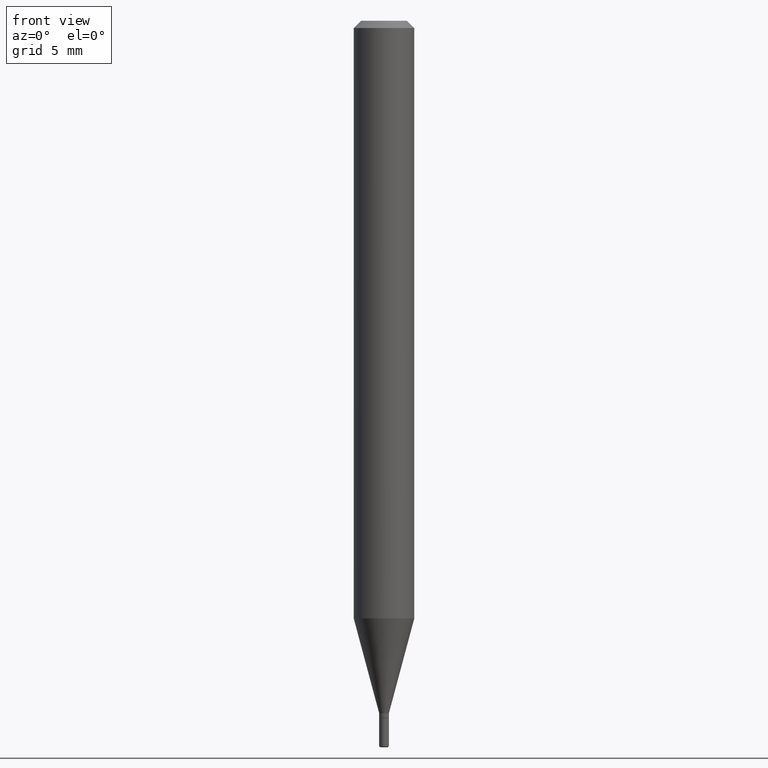
[diagram: clean part render]
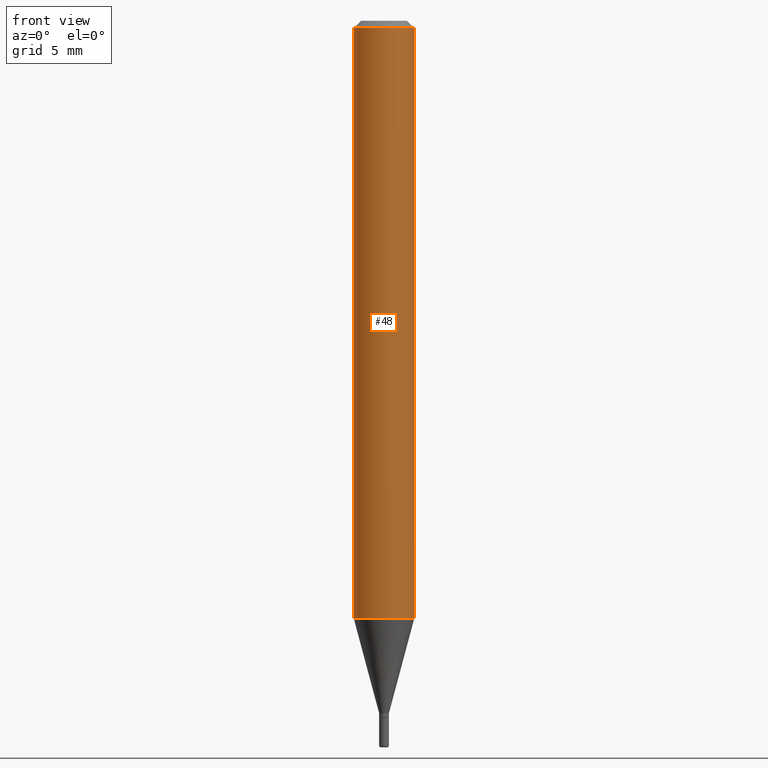
[diagram: same view with one face highlighted and labeled with its STEP entity id]
A machine part, front view. The second image highlights one B-rep face of the part: STEP entity #48.
In plain terms, the highlighted cylindrical surface (edge-blend (fillet) strip) has radius 1.5875 mm, axis along (-0, 0, 1).
Its self-contained STEP definition (entity closure, byte-faithful):
#15 = AXIS2_PLACEMENT_3D ( 'NONE', #360, #512, #239 ) ;
#28 = DIRECTION ( 'NONE',  ( 1.000000000000000000, -6.982962677686266711E-15, 4.876176775795935793E-29 ) ) ;
#41 = VECTOR ( 'NONE', #402, 39.37007874015748143 ) ;
#46 = CARTESIAN_POINT ( 'NONE',  ( 0.06250000000000000000, -4.364351673553916694E-16, 3.047610484872459871E-30 ) ) ;
#48 = ADVANCED_FACE ( 'NONE', ( #257 ), #307, .T. ) ;
#49 = EDGE_LOOP ( 'NONE', ( #404, #75, #281, #86 ) ) ;
#55 = EDGE_CURVE ( 'NONE', #274, #116, #140, .T. ) ;
#58 = VECTOR ( 'NONE', #425, 39.37007874015748143 ) ;
#75 = ORIENTED_EDGE ( 'NONE', *, *, #231, .T. ) ;
#86 = ORIENTED_EDGE ( 'NONE', *, *, #416, .F. ) ;
#92 = CARTESIAN_POINT ( 'NONE',  ( 3.668203209277632395E-31, -5.237222008264614861E-17, -0.01499999999999970281 ) ) ;
#116 = VERTEX_POINT ( 'NONE', #141 ) ;
#140 = LINE ( 'NONE', #223, #58 ) ;
#141 = CARTESIAN_POINT ( 'NONE',  ( -0.06250000000000000000, -1.736458431520275880E-15, -0.01499999999999970281 ) ) ;
#153 = VERTEX_POINT ( 'NONE', #339 ) ;
#186 = AXIS2_PLACEMENT_3D ( 'NONE', #92, #246, #291 ) ;
#203 = CARTESIAN_POINT ( 'NONE',  ( -0.06249999999999999306, -3.864633852807968480E-15, -1.234067332602633238 ) ) ;
#219 = EDGE_CURVE ( 'NONE', #306, #153, #382, .T. ) ;
#223 = CARTESIAN_POINT ( 'NONE',  ( -0.06250000000000000000, 4.440892098500626162E-16, -3.074334431409316114E-30 ) ) ;
#231 = EDGE_CURVE ( 'NONE', #274, #306, #513, .T. ) ;
#239 = DIRECTION ( 'NONE',  ( 1.000000000000000000, -6.982962677686262766E-15, 0.000000000000000000 ) ) ;
#246 = DIRECTION ( 'NONE',  ( -2.445468806185136597E-29, 3.491481338843145583E-15, 1.000000000000000000 ) ) ;
#257 = FACE_OUTER_BOUND ( 'NONE', #49, .T. ) ;
#260 = CIRCLE ( 'NONE', #186, 0.06250000000000000000 ) ;
#264 = CARTESIAN_POINT ( 'NONE',  ( 0.000000000000000000, 0.000000000000000000, 0.000000000000000000 ) ) ;
#268 = AXIS2_PLACEMENT_3D ( 'NONE', #264, #502, #28 ) ;
#274 = VERTEX_POINT ( 'NONE', #203 ) ;
#281 = ORIENTED_EDGE ( 'NONE', *, *, #219, .T. ) ;
#291 = DIRECTION ( 'NONE',  ( 1.000000000000000000, -6.982962677686266711E-15, 0.000000000000000000 ) ) ;
#306 = VERTEX_POINT ( 'NONE', #348 ) ;
#307 = CYLINDRICAL_SURFACE ( 'NONE', #268, 0.06250000000000000000 ) ;
#339 = CARTESIAN_POINT ( 'NONE',  ( 0.06250000000000000000, -4.888073874380378612E-16, -0.01499999999999970281 ) ) ;
#348 = CARTESIAN_POINT ( 'NONE',  ( 0.06249999999999999306, -4.745158230013422766E-15, -1.234067332602633238 ) ) ;
#360 = CARTESIAN_POINT ( 'NONE',  ( 3.017873166611837280E-29, -4.308723062658031096E-15, -1.234067332602633238 ) ) ;
#382 = LINE ( 'NONE', #46, #41 ) ;
#402 = DIRECTION ( 'NONE',  ( -2.445468806185136877E-29, 3.491481338843145188E-15, 1.000000000000000000 ) ) ;
#404 = ORIENTED_EDGE ( 'NONE', *, *, #55, .F. ) ;
#416 = EDGE_CURVE ( 'NONE', #116, #153, #260, .T. ) ;
#425 = DIRECTION ( 'NONE',  ( -2.445468806185136877E-29, 3.491481338843145188E-15, 1.000000000000000000 ) ) ;
#502 = DIRECTION ( 'NONE',  ( -2.445468806185136597E-29, 3.491481338843145583E-15, 1.000000000000000000 ) ) ;
#512 = DIRECTION ( 'NONE',  ( -2.445468806185136597E-29, 3.491481338843145583E-15, 1.000000000000000000 ) ) ;
#513 = CIRCLE ( 'NONE', #15, 0.06250000000000000000 ) ;